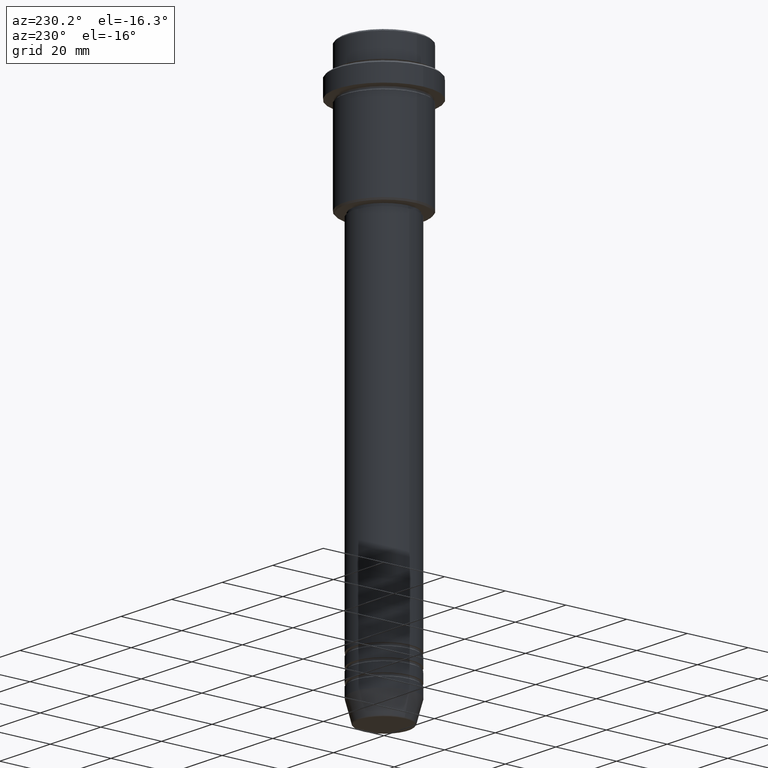
[diagram: clean part render]
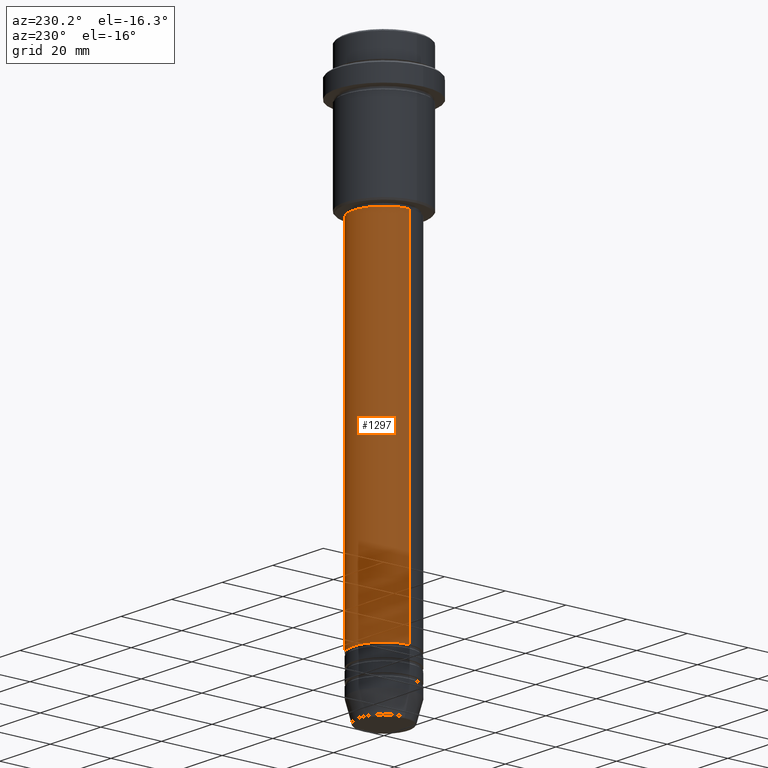
[diagram: same view with one face highlighted and labeled with its STEP entity id]
A machine part, auxiliary view. The second image highlights one B-rep face of the part: STEP entity #1297.
In plain terms, the highlighted cylindrical surface (partial cylindrical patch) has radius 10 mm, axis along (-0, -0, 1).
Its self-contained STEP definition (entity closure, byte-faithful):
#43 = ORIENTED_EDGE ( 'NONE', *, *, #1382, .F. ) ;
#50 = DIRECTION ( 'NONE',  ( -0.000000000000000000, -0.000000000000000000, 1.000000000000000000 ) ) ;
#62 = LINE ( 'NONE', #1369, #1407 ) ;
#65 = LINE ( 'NONE', #283, #775 ) ;
#91 = VERTEX_POINT ( 'NONE', #492 ) ;
#120 = EDGE_CURVE ( 'NONE', #300, #832, #62, .T. ) ;
#135 = CYLINDRICAL_SURFACE ( 'NONE', #680, 10.00000000000000178 ) ;
#183 = DIRECTION ( 'NONE',  ( 1.000000000000000000, 0.000000000000000000, 0.000000000000000000 ) ) ;
#258 = DIRECTION ( 'NONE',  ( -0.000000000000000000, -0.000000000000000000, 1.000000000000000000 ) ) ;
#271 = DIRECTION ( 'NONE',  ( 1.000000000000000000, 0.000000000000000000, 0.000000000000000000 ) ) ;
#283 = CARTESIAN_POINT ( 'NONE',  ( 10.00000000000000178, 0.000000000000000000, 0.000000000000000000 ) ) ;
#300 = VERTEX_POINT ( 'NONE', #1143 ) ;
#340 = DIRECTION ( 'NONE',  ( 1.000000000000000000, 0.000000000000000000, 0.000000000000000000 ) ) ;
#363 = ORIENTED_EDGE ( 'NONE', *, *, #120, .T. ) ;
#391 = DIRECTION ( 'NONE',  ( -0.000000000000000000, -0.000000000000000000, 1.000000000000000000 ) ) ;
#492 = CARTESIAN_POINT ( 'NONE',  ( 10.00000000000000000, 0.000000000000000000, -160.9999999999999147 ) ) ;
#505 = EDGE_LOOP ( 'NONE', ( #1232, #363, #43, #676 ) ) ;
#538 = VERTEX_POINT ( 'NONE', #1165 ) ;
#632 = CIRCLE ( 'NONE', #1408, 10.00000000000000178 ) ;
#676 = ORIENTED_EDGE ( 'NONE', *, *, #947, .F. ) ;
#680 = AXIS2_PLACEMENT_3D ( 'NONE', #1018, #1316, #340 ) ;
#775 = VECTOR ( 'NONE', #258, 1000.000000000000000 ) ;
#813 = CARTESIAN_POINT ( 'NONE',  ( -10.00000000000000178, 1.224646799147353454E-15, -46.00000000000000000 ) ) ;
#821 = CARTESIAN_POINT ( 'NONE',  ( 0.000000000000000000, 0.000000000000000000, -160.9999999999999147 ) ) ;
#822 = CIRCLE ( 'NONE', #1223, 10.00000000000000000 ) ;
#832 = VERTEX_POINT ( 'NONE', #813 ) ;
#892 = FACE_OUTER_BOUND ( 'NONE', #505, .T. ) ;
#926 = DIRECTION ( 'NONE',  ( -0.000000000000000000, -0.000000000000000000, 1.000000000000000000 ) ) ;
#947 = EDGE_CURVE ( 'NONE', #91, #538, #65, .T. ) ;
#1007 = EDGE_CURVE ( 'NONE', #91, #300, #822, .T. ) ;
#1018 = CARTESIAN_POINT ( 'NONE',  ( 0.000000000000000000, 0.000000000000000000, 0.000000000000000000 ) ) ;
#1143 = CARTESIAN_POINT ( 'NONE',  ( -10.00000000000000000, 1.224646799147353256E-15, -160.9999999999999147 ) ) ;
#1165 = CARTESIAN_POINT ( 'NONE',  ( 10.00000000000000178, 0.000000000000000000, -46.00000000000000000 ) ) ;
#1223 = AXIS2_PLACEMENT_3D ( 'NONE', #821, #50, #271 ) ;
#1232 = ORIENTED_EDGE ( 'NONE', *, *, #1007, .T. ) ;
#1247 = CARTESIAN_POINT ( 'NONE',  ( 0.000000000000000000, 0.000000000000000000, -46.00000000000000000 ) ) ;
#1297 = ADVANCED_FACE ( 'NONE', ( #892 ), #135, .T. ) ;
#1316 = DIRECTION ( 'NONE',  ( -0.000000000000000000, -0.000000000000000000, 1.000000000000000000 ) ) ;
#1369 = CARTESIAN_POINT ( 'NONE',  ( -10.00000000000000178, 1.224646799147353454E-15, 0.000000000000000000 ) ) ;
#1382 = EDGE_CURVE ( 'NONE', #538, #832, #632, .T. ) ;
#1407 = VECTOR ( 'NONE', #391, 1000.000000000000000 ) ;
#1408 = AXIS2_PLACEMENT_3D ( 'NONE', #1247, #926, #183 ) ;